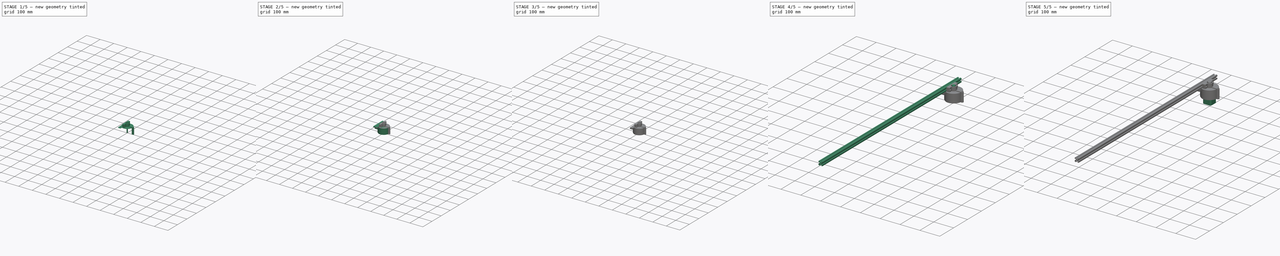
[diagram: build sequence overview — one tinted view per stage of 5, left to right]
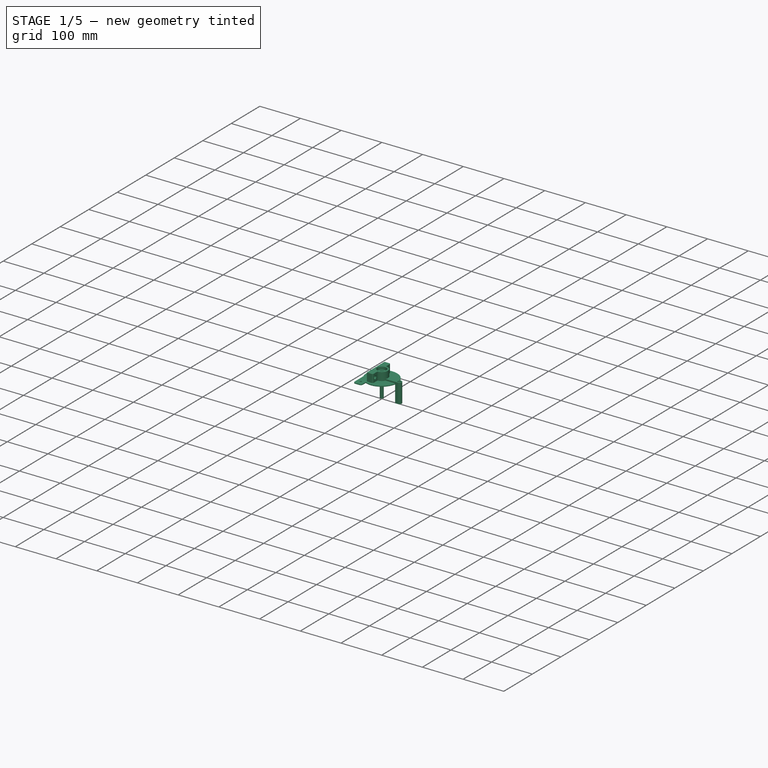
[diagram: stage 1 of 5 — iso view after this stage's code; geometry added in this stage tinted green]
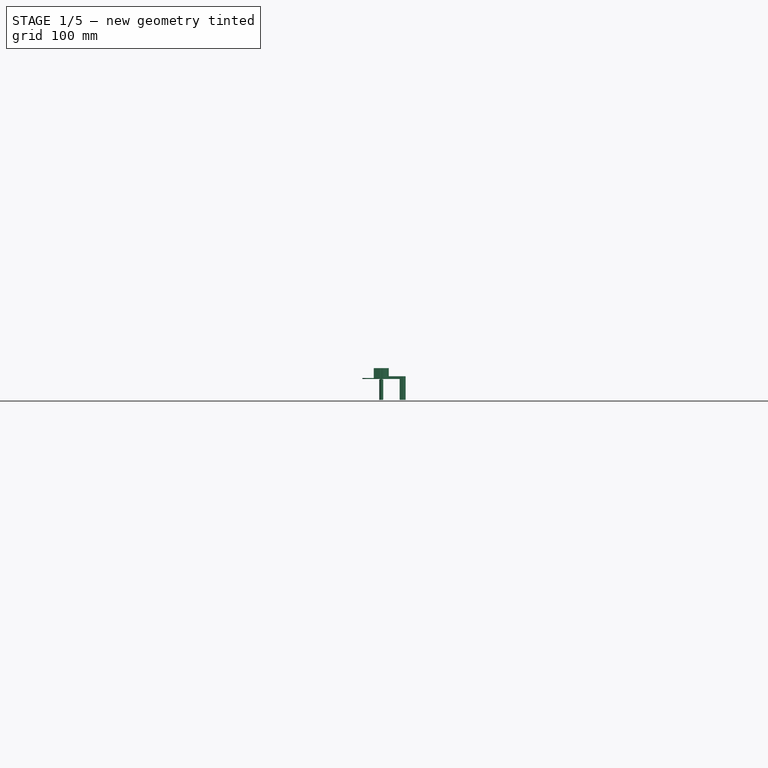
[diagram: stage 1 of 5 — front view after this stage's code; geometry added in this stage tinted green]
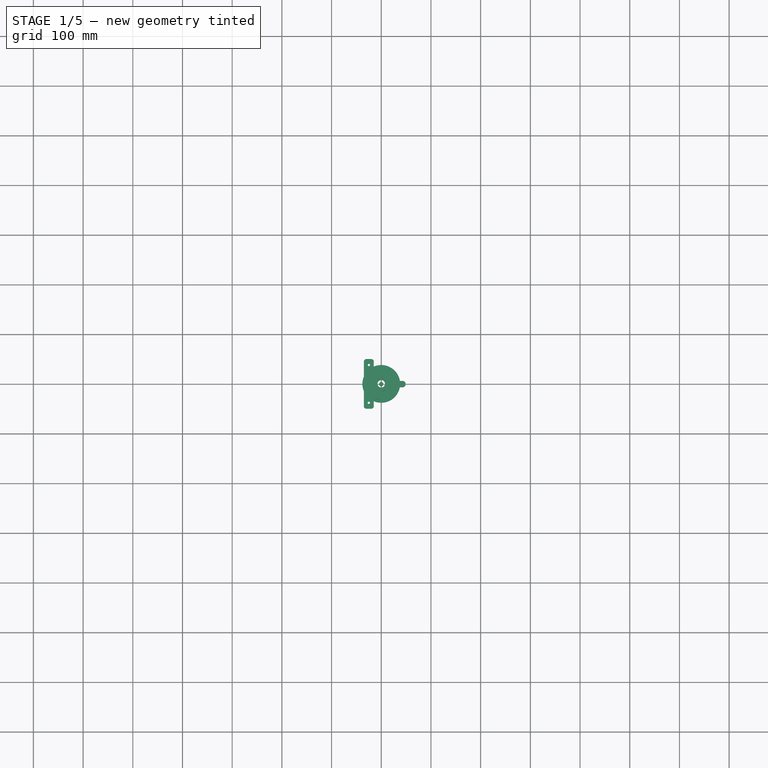
[diagram: stage 1 of 5 — top view after this stage's code; geometry added in this stage tinted green]
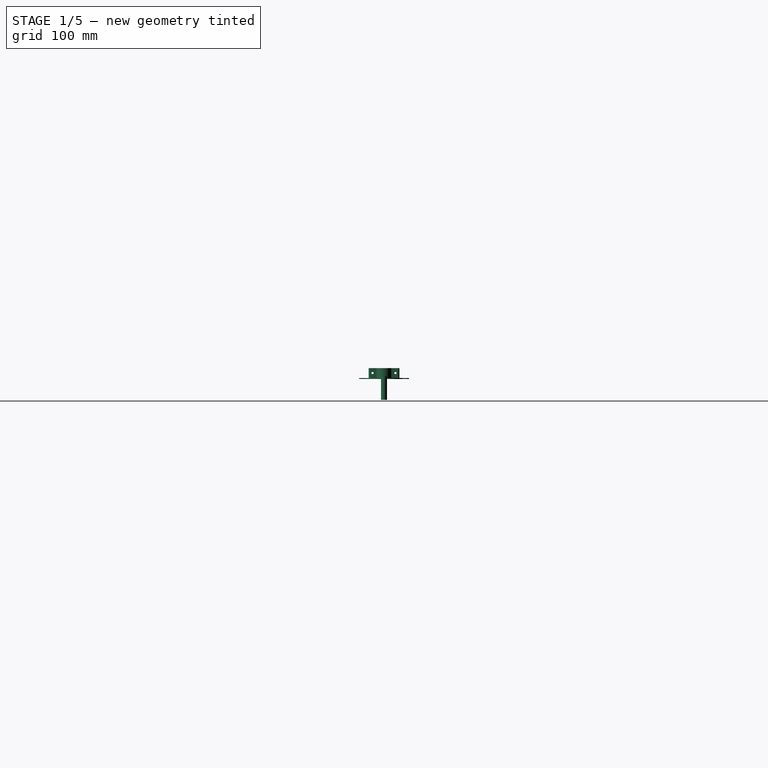
[diagram: stage 1 of 5 — right view after this stage's code; geometry added in this stage tinted green]
FCSTD DOCUMENT  (FreeCAD 1.0R1.0.0)
Label: Gear01_NEMA17
License: All rights reserved
LicenseURL: http://en.wikipedia.org/wiki/All_rights_reserved
objects: Part::Cylinder×39, Part::MultiFuse×29, Part::Cut×23, Part::Box×16, Part::FeaturePython×15, Part::Compound×8, Sketcher::SketchObject×4, Spreadsheet::Sheet×3, PartDesign::Pad×3, PartDesign::Body×3, Part::Fillet×2, Part::Feature×2, Part::Extrusion×1
note: 152 computed .brp shape members not serialized (recipe doc carries the construction recipe); baked Part::Feature solids carry a one-line shape summary decoded from their .brp

FEATURE [Spreadsheet::Sheet] Spreadsheet002  label="TypeB_20x20_4open_props"
  cells = A1='20 x 20mm Type B extrusion, open all sides; A2='Extrusion length; B2(extrusion_length)=1000
FEATURE [Part::Feature] Fillet_solid  label="Fillet (Solid)"
  Placement = pos=(0,0,0) rot=(0,0,1;1.5708rad)
  shape: bbox 20 x 62 x 30 mm, 28 faces (baked)
FEATURE [Part::Compound] Compound007
  Links = -> [Fillet_solid]
  Placement = pos=(-15,0,47) rot=(0,1,0;1.5708rad)
FEATURE [Part::FeaturePython] Tube002  # WARN: FeaturePython — macro-defined, semantics opaque (R4)
  AttacherType = Attacher::AttachEngine3D
  Height = 2
  InnerRadius = 12
  OuterRadius = 38
  Placement = pos=(0,0,35) rot=(0,0,1;0rad)
  expr: InnerRadius = 12
  expr: OuterRadius = <<GearConfiguration>>.ringgear_diameter / 2 + 5.5
FEATURE [Part::MultiFuse] Fusion012
  Shapes = -> [Compound007,Tube002]
FEATURE [Part::Cylinder] Cylinder020
  Angle = 360
  AttacherType = Attacher::AttachEngine3D
  FirstAngle = 0
  Height = 12
  Radius = 2.25
  SecondAngle = 0
FEATURE [Part::Cylinder] Cylinder021
  Angle = 360
  AttacherType = Attacher::AttachEngine3D
  FirstAngle = 0
  Height = 5
  Placement = pos=(0,0,-1) rot=(0,0,1;0rad)
  Radius = 4.5
  SecondAngle = 0
FEATURE [Part::MultiFuse] Fusion013
  Placement = pos=(-25,-38,29) rot=(0,0,1;0rad)
  Shapes = -> [Cylinder020,Cylinder021]
FEATURE [Part::Cylinder] Cylinder022
  Angle = 360
  AttacherType = Attacher::AttachEngine3D
  FirstAngle = 0
  Height = 12
  Radius = 2.25
  SecondAngle = 0
FEATURE [Part::Cylinder] Cylinder023
  Angle = 360
  AttacherType = Attacher::AttachEngine3D
  FirstAngle = 0
  Height = 5
  Placement = pos=(0,0,-1) rot=(0,0,1;0rad)
  Radius = 4.5
  SecondAngle = 0
FEATURE [Part::MultiFuse] Fusion014
  Placement = pos=(-25,38,29) rot=(0,0,1;0rad)
  Shapes = -> [Cylinder022,Cylinder023]
FEATURE [Part::Box] Box009  label="Cube009"
  AttacherType = Attacher::AttachEngine3D
  Height = 2
  Length = 20
  Placement = pos=(-35,-50,35) rot=(0,0,1;0rad)
  Width = 100
FEATURE [Part::MultiFuse] Fusion015
  Shapes = -> [Fusion012,Box009]
FEATURE [Part::MultiFuse] Fusion016
  Shapes = -> [Fusion014,Fusion013]
FEATURE [Part::Cut] Cut010
  Base = -> Fusion015
  Tool = -> Fusion016
FEATURE [Part::Fillet] Fillet001  label="Stator1"
  Base = -> Cut010
  EdgeLinks = -> Cut010 [Edge4,Edge16,Edge27,Edge53]
  Edges = 4 edges r=5: [Edge4,Edge16,Edge27,Edge53]
FEATURE [Part::Cylinder] Cylinder035
  Angle = 360
  AttacherType = Attacher::AttachEngine3D
  FirstAngle = 0
  Height = 41.2
  Placement = pos=(0,0,-7) rot=(0,0,1;0rad)
  Radius = 4
  SecondAngle = 0
  expr: .Placement.Base.z = -7 - (<<GearConfiguration>>.shell_height - 42)
  expr: Height = <<GearConfiguration>>.shell_height - 0.8
FEATURE [Part::Cylinder] Cylinder036
  Angle = 360
  AttacherType = Attacher::AttachEngine3D
  FirstAngle = 0
  Height = 51
  Placement = pos=(0,0,-7) rot=(0,0,1;0rad)
  Radius = 2.25
  SecondAngle = 0
  expr: .Placement.Base.z = -7 - (<<GearConfiguration>>.shell_height - 42)
  expr: Height = <<GearConfiguration>>.shell_height + 9
FEATURE [Part::Cylinder] Cylinder037
  Angle = 360
  AttacherType = Attacher::AttachEngine3D
  FirstAngle = 0
  Height = 42
  Placement = pos=(43,0,-7) rot=(0,0,1;0rad)
  Radius = 6
  SecondAngle = 0
  expr: .Placement.Base.x = <<GearConfiguration>>.ringgear_diameter / 2 + 6.5 + 4
  expr: .Placement.Base.z = -7 - (<<GearConfiguration>>.shell_height - 42)
  expr: Height = <<GearConfiguration>>.shell_height
FEATURE [Part::Box] Box013  label="Cube013"
  AttacherType = Attacher::AttachEngine3D
  Height = 42
  Length = 6
  Placement = pos=(37,-6,-7) rot=(0,0,1;0rad)
  Width = 12
  expr: .Placement.Base.x = <<GearConfiguration>>.ringgear_diameter / 2 + 6.5 + 4 - 6
  expr: .Placement.Base.z = -7 - (<<GearConfiguration>>.shell_height - 42)
  expr: Height = <<GearConfiguration>>.shell_height
FEATURE [Part::MultiFuse] Fusion024
  Shapes = -> [Cylinder037,Box013]
FEATURE [Part::Box] Box014  label="Cube014"
  AttacherType = Attacher::AttachEngine3D
  Height = 5.5
  Length = 30
  Placement = pos=(12,-6,-2) rot=(0,0,1;0rad)
  Width = 12
FEATURE [Part::Cylinder] Cylinder038
  Angle = 360
  AttacherType = Attacher::AttachEngine3D
  FirstAngle = 0
  Height = 5.5
  Placement = pos=(43,0,-2) rot=(0,0,1;0rad)
  Radius = 6
  SecondAngle = 0
  expr: .Placement.Base.x = <<GearConfiguration>>.ringgear_diameter / 2 + 6.5 + 4
FEATURE [Part::MultiFuse] Fusion025
  Placement = pos=(0,0,37) rot=(0,0,1;0rad)
  Shapes = -> [Cylinder038,Box014]
FEATURE [Part::Cylinder] Cylinder039
  Angle = 360
  AttacherType = Attacher::AttachEngine3D
  FirstAngle = 0
  Height = 46.7
  Placement = pos=(43,0,-2) rot=(0,0,1;0rad)
  Radius = 2.25
  SecondAngle = 0
  expr: .Placement.Base.x = <<GearConfiguration>>.ringgear_diameter / 2 + 6.5 + 4
FEATURE [Sketcher::SketchObject] Sketch003
  ArcFitTolerance = 0
  FullyConstrained = true
  MakeInternals = false
  sketch-geometry (7):
    g0: LineSegment StartX=-4.33 StartY=0 StartZ=0 EndX=-2.165 EndY=-3.74989 EndZ=0
    g1: LineSegment StartX=-2.165 StartY=-3.74989 StartZ=0 EndX=2.165 EndY=-3.74989 EndZ=0
    g2: LineSegment StartX=2.165 StartY=-3.74989 StartZ=0 EndX=4.33 EndY=-4e-16 EndZ=0
    g3: LineSegment StartX=4.33 StartY=-3e-16 StartZ=0 EndX=2.165 EndY=3.74989 EndZ=0
    g4: LineSegment StartX=2.165 StartY=3.74989 StartZ=0 EndX=-2.165 EndY=3.74989 EndZ=0
    g5: LineSegment StartX=-2.165 StartY=3.74989 StartZ=0 EndX=-4.33 EndY=0 EndZ=0
    g6: Circle [constr] CenterX=0 CenterY=0 CenterZ=0 NormalX=0 NormalY=0 NormalZ=1 AngleXU=0 Radius=4.33
  constraints (16):
    c: Coincident(g0,g1)
    c: Coincident(g1,g2)
    c: Coincident(g2,g3)
    c: Coincident(g3,g4)
    c: Coincident(g4,g5)
    c: Coincident(g5,g0)
    c: Equal(g0, g1-g5) x5
    c: PointOnObject(g0,g6)
    c: PointOnObject(g1,g6)
    c: PointOnObject(g2,g6)
    c: PointOnObject(g3,g6)
    c: PointOnObject(g4,g6)
    c: PointOnObject(g5,g6)
    c: Coincident(g6,g-1)
    c: PointOnObject(g5,g-1)
    c: DistanceX(g0,g2) = 8.66
FEATURE [Part::Extrusion] Extrude  label="DIN934_M4"
  Base = -> Sketch003
  Dir = (0,0,1)
  DirMode = 2
  FaceMakerClass = Part::FaceMakerBullseye
  FaceMakerMode = 3
  LengthFwd = 2.4
  LengthRev = 0
  Placement = pos=(43,0,38.1) rot=(0,0,1;0rad)
  Solid = true
  Symmetric = false
FEATURE [Part::MultiFuse] Fusion026
  Shapes = -> [Cylinder039,Extrude]
FEATURE [Part::Cut] Cut021
  Base = -> Fusion025
  Tool = -> Fusion026
FEATURE [Part::MultiFuse] Fusion028  label="Stator001_WithScrew"
  Shapes = -> [Cut021,Fillet001]
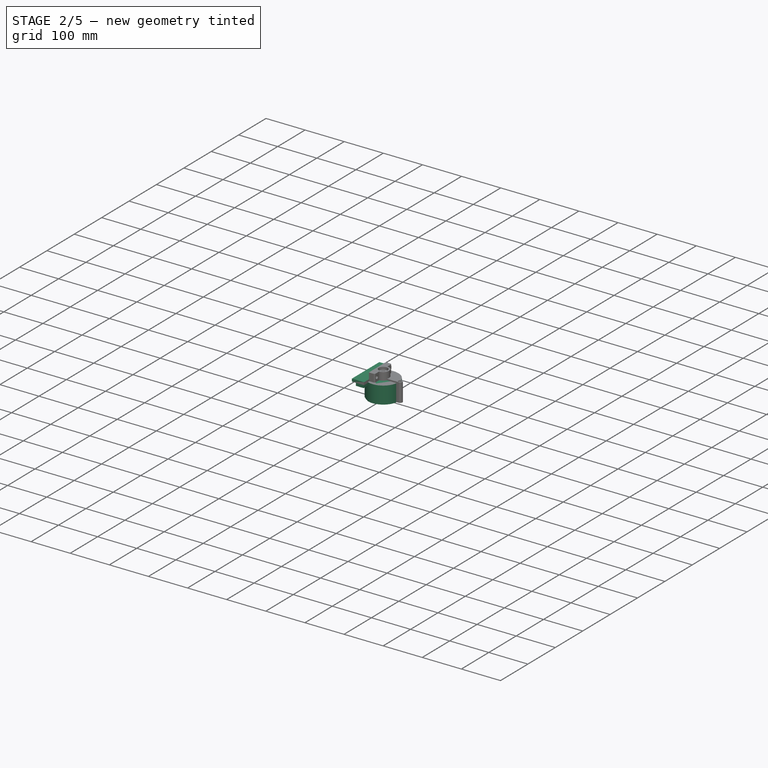
[diagram: stage 2 of 5 — iso view after this stage's code; geometry added in this stage tinted green]
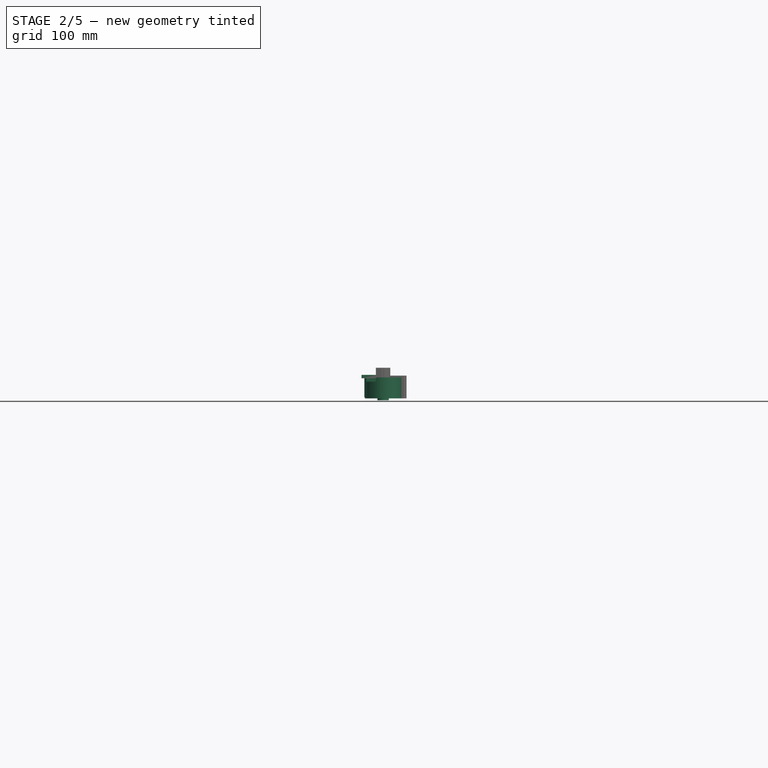
[diagram: stage 2 of 5 — front view after this stage's code; geometry added in this stage tinted green]
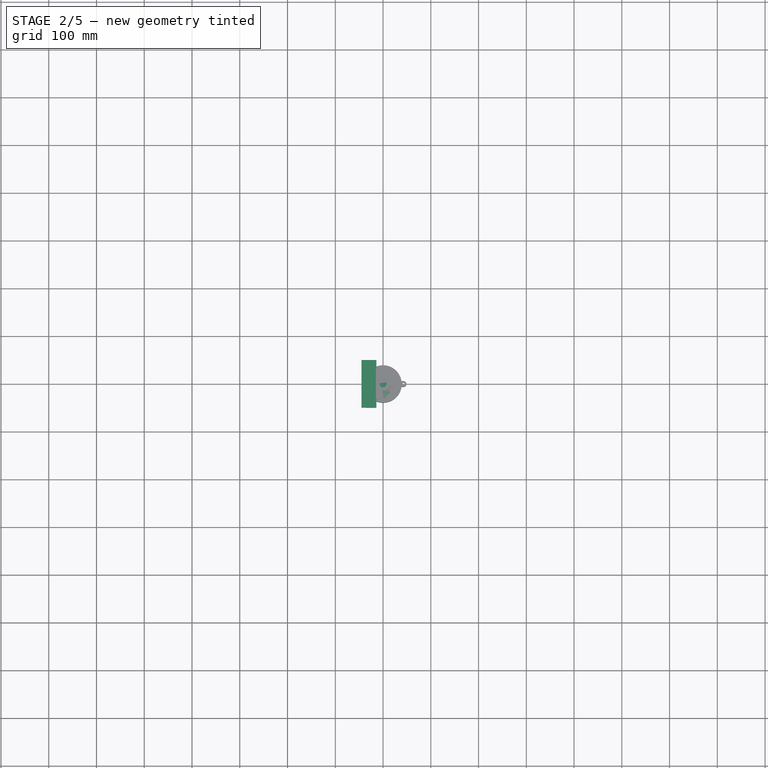
[diagram: stage 2 of 5 — top view after this stage's code; geometry added in this stage tinted green]
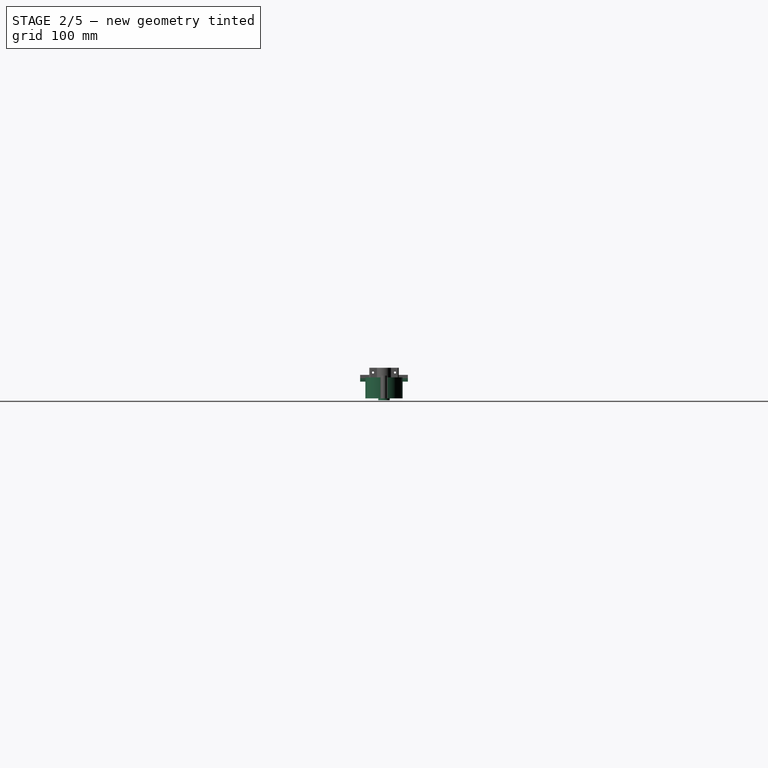
[diagram: stage 2 of 5 — right view after this stage's code; geometry added in this stage tinted green]
FEATURE [Part::Cylinder] Cylinder019
  Angle = 360
  AttacherType = Attacher::AttachEngine3D
  FirstAngle = 0
  Height = 5
  Placement = pos=(0,0,-7) rot=(0,0,1;0rad)
  Radius = 37.5
  SecondAngle = 0
  expr: .Placement.Base.z = -7 - (<<GearConfiguration>>.shell_height - 42)
  expr: Radius = <<GearConfiguration>>.ringgear_diameter / 2 + 5
FEATURE [Part::Cylinder] Cylinder024
  Angle = 360
  AttacherType = Attacher::AttachEngine3D
  FirstAngle = 0
  Height = 12
  Radius = 2.25
  SecondAngle = 0
FEATURE [Part::Cylinder] Cylinder025
  Angle = 360
  AttacherType = Attacher::AttachEngine3D
  FirstAngle = 0
  Height = 5
  Placement = pos=(0,0,-1) rot=(0,0,1;0rad)
  Radius = 4.5
  SecondAngle = 0
FEATURE [Part::Cylinder] Cylinder026
  Angle = 360
  AttacherType = Attacher::AttachEngine3D
  FirstAngle = 0
  Height = 12
  Radius = 2.25
  SecondAngle = 0
FEATURE [Part::Cylinder] Cylinder027
  Angle = 360
  AttacherType = Attacher::AttachEngine3D
  FirstAngle = 0
  Height = 5
  Placement = pos=(0,0,-1) rot=(0,0,1;0rad)
  Radius = 4.5
  SecondAngle = 0
FEATURE [Part::MultiFuse] Fusion017
  Placement = pos=(-25,-38,29) rot=(0,0,1;0rad)
  Shapes = -> [Cylinder024,Cylinder025]
FEATURE [Part::MultiFuse] Fusion018
  Placement = pos=(-25,38,29) rot=(0,0,1;0rad)
  Shapes = -> [Cylinder026,Cylinder027]
FEATURE [Part::MultiFuse] Fusion019
  Shapes = -> [Fusion018,Fusion017]
FEATURE [Part::Box] Box010  label="Cube010"
  AttacherType = Attacher::AttachEngine3D
  Height = 7
  Length = 20
  Placement = pos=(-35,-50,28) rot=(0,0,1;0rad)
  Width = 100
FEATURE [Part::Cut] Cut011
  Base = -> Box010
  Tool = -> Fusion019
FEATURE [Part::Cylinder] Cylinder028
  Angle = 360
  AttacherType = Attacher::AttachEngine3D
  FirstAngle = 0
  Height = 10
  Placement = pos=(0,0,28) rot=(0,0,1;0rad)
  Radius = 36.5
  SecondAngle = 0
  expr: Radius = <<GearConfiguration>>.ringgear_diameter / 2 + 4
FEATURE [Part::Cut] Cut012
  Base = -> Cut011
  Tool = -> Cylinder028
FEATURE [Part::FeaturePython] InvoluteGear002  # WARN: FeaturePython — macro-defined, semantics opaque (R4)
  AttacherType = Attacher::AttachEngine3D
  Placement = pos=(0,0,-5) rot=(0,0,1;0rad)
  angular_backlash = -0.528884
  backlash = -0.3
  beta = 30
  clearance = -0.7
  da = 69
  df = 64.4
  double_helix = false
  dw = 65
  head = 1
  head_fillet = 0
  height = 42
  module = 1
  numpoints = 20
  pressure_angle = 20
  properties_from_tool = false
  reversed_backlash = false
  root_fillet = 0
  shift = 0
  simple = false
  teeth = 65
  transverse_pitch = 3.14159
  traverse_module = 1
  undercut = false
  version = 1.2.0
  expr: .Placement.Base.z = -5 - (<<GearConfiguration>>.shell_height - 42)
  expr: angular_backlash = backlash / dw * 360 ° / pi
  expr: backlash = -<<GearConfiguration>>.backlash
  expr: clearance = -1 * <<GearConfiguration>>.gear_clearance
  expr: height = <<GearConfiguration>>.shell_height
  expr: module = <<GearConfiguration>>.gear_module
  expr: teeth = <<GearConfiguration>>.zr
FEATURE [Part::FeaturePython] Tube003  # WARN: FeaturePython — macro-defined, semantics opaque (R4)
  AttacherType = Attacher::AttachEngine3D
  Height = 44
  InnerRadius = 38
  OuterRadius = 39
  Placement = pos=(0,0,-7) rot=(0,0,1;0rad)
  expr: .Placement.Base.z = -7 - (<<GearConfiguration>>.shell_height - 42)
  expr: Height = <<GearConfiguration>>.shell_height + 2
  expr: InnerRadius = <<GearConfiguration>>.ringgear_diameter / 2 + 5.5
  expr: OuterRadius = <<GearConfiguration>>.ringgear_diameter / 2 + 6.5
FEATURE [Part::Box] Box011  label="Cube011"
  AttacherType = Attacher::AttachEngine3D
  Height = 44
  Length = 40
  Placement = pos=(-55,-50,-7) rot=(0,0,1;0rad)
  Width = 100
  expr: .Placement.Base.z = -7 - (<<GearConfiguration>>.shell_height - 42)
  expr: Height = <<GearConfiguration>>.shell_height + 2
FEATURE [Part::Cut] Cut014
  Base = -> Tube003
  Tool = -> Box011
FEATURE [Part::Cylinder] Cylinder029
  Angle = 360
  AttacherType = Attacher::AttachEngine3D
  FirstAngle = 0
  Height = 42
  Placement = pos=(0,0,-7) rot=(0,0,1;0rad)
  Radius = 29.5
  SecondAngle = 0
  expr: .Placement.Base.z = -7 - (<<GearConfiguration>>.shell_height - 42)
  expr: Height = <<GearConfiguration>>.shell_height
  expr: Radius = <<GearConfiguration>>.ringgear_diameter / 2 - 3
FEATURE [Part::Cylinder] Cylinder030
  Angle = 360
  AttacherType = Attacher::AttachEngine3D
  FirstAngle = 0
  Height = 42
  Placement = pos=(0,0,-7) rot=(0,0,1;0rad)
  Radius = 38
  SecondAngle = 0
  expr: .Placement.Base.z = -7 - (<<GearConfiguration>>.shell_height - 42)
  expr: Height = <<GearConfiguration>>.shell_height
  expr: Radius = <<GearConfiguration>>.ringgear_diameter / 2 + 5.5
FEATURE [Part::Cut] Cut015
  Base = -> Cylinder030
  Tool = -> Cylinder029
FEATURE [Part::Cylinder] Cylinder031
  Angle = 360
  AttacherType = Attacher::AttachEngine3D
  FirstAngle = 0
  Height = 42
  Placement = pos=(0,0,-5) rot=(0,0,1;0rad)
  Radius = 38
  SecondAngle = 0
  expr: .Placement.Base.z = -5 - (<<GearConfiguration>>.shell_height - 42)
  expr: Height = <<GearConfiguration>>.shell_height
  expr: Radius = <<GearConfiguration>>.ringgear_diameter / 2 + 5.5
FEATURE [Part::Cylinder] Cylinder032
  Angle = 360
  AttacherType = Attacher::AttachEngine3D
  FirstAngle = 0
  Height = 42
  Placement = pos=(0,0,-5) rot=(0,0,1;0rad)
  Radius = 39
  SecondAngle = 0
  expr: .Placement.Base.z = -5 - (<<GearConfiguration>>.shell_height - 42)
  expr: Height = <<GearConfiguration>>.shell_height
  expr: Radius = <<GearConfiguration>>.ringgear_diameter / 2 + 6.5
FEATURE [Part::Cut] Cut016
  Base = -> Cylinder032
  Tool = -> Cylinder031
FEATURE [Part::MultiFuse] Fusion021
  Shapes = -> [Cut014,Cut016]
FEATURE [Part::Box] Box012  label="Cube012"
  AttacherType = Attacher::AttachEngine3D
  Height = 7
  Length = 31
  Placement = pos=(-45,-50,35) rot=(0,0,1;0rad)
  Width = 100
FEATURE [Part::Cylinder] Cylinder034
  Angle = 360
  AttacherType = Attacher::AttachEngine3D
  FirstAngle = 0
  Height = 10
  Placement = pos=(0,0,-11) rot=(0,0,1;0rad)
  Radius = 12
  SecondAngle = 0
  expr: .Placement.Base.z = -11 - (<<GearConfiguration>>.shell_height - 42)
FEATURE [Part::MultiFuse] Fusion023
  Placement = pos=(43,0,0) rot=(0,0,1;0rad)
  Shapes = -> [Cylinder036,Cylinder035]
  expr: .Placement.Base.x = <<GearConfiguration>>.ringgear_diameter / 2 + 6.5 + 4
FEATURE [Part::Cut] Cut020
  Base = -> Fusion024
  Tool = -> Fusion023
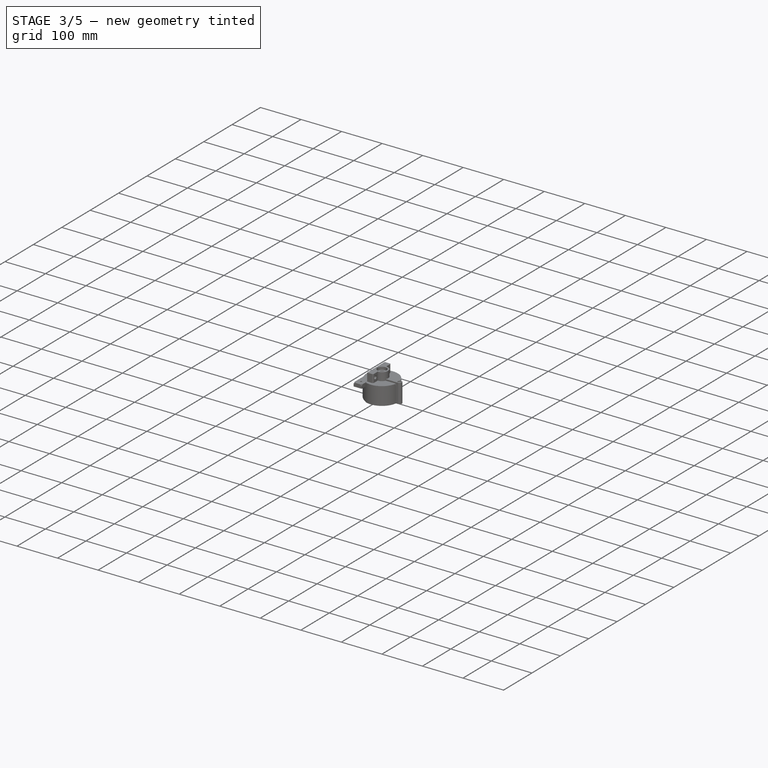
[diagram: stage 3 of 5 — iso view after this stage's code; geometry added in this stage tinted green]
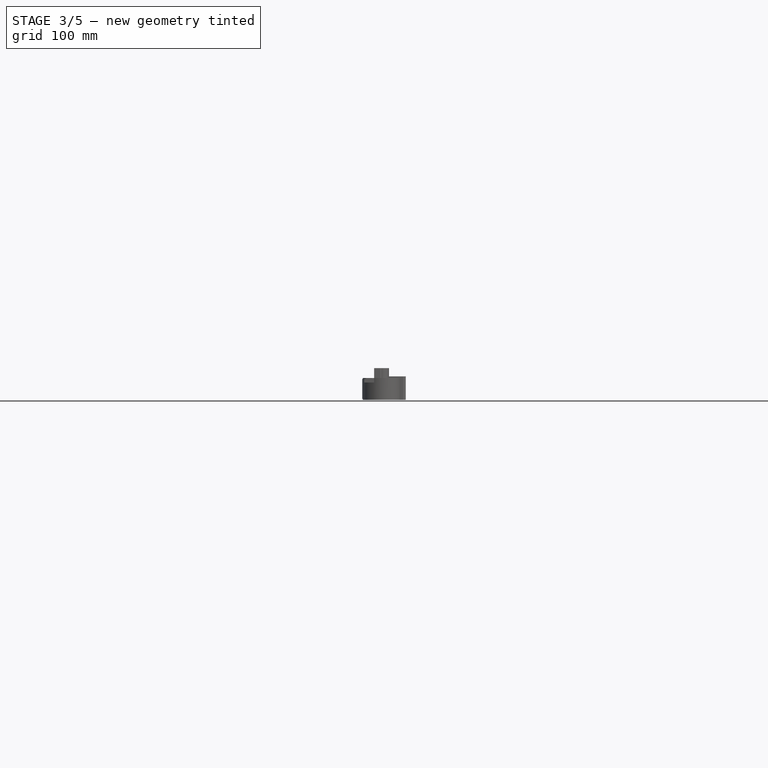
[diagram: stage 3 of 5 — front view after this stage's code; geometry added in this stage tinted green]
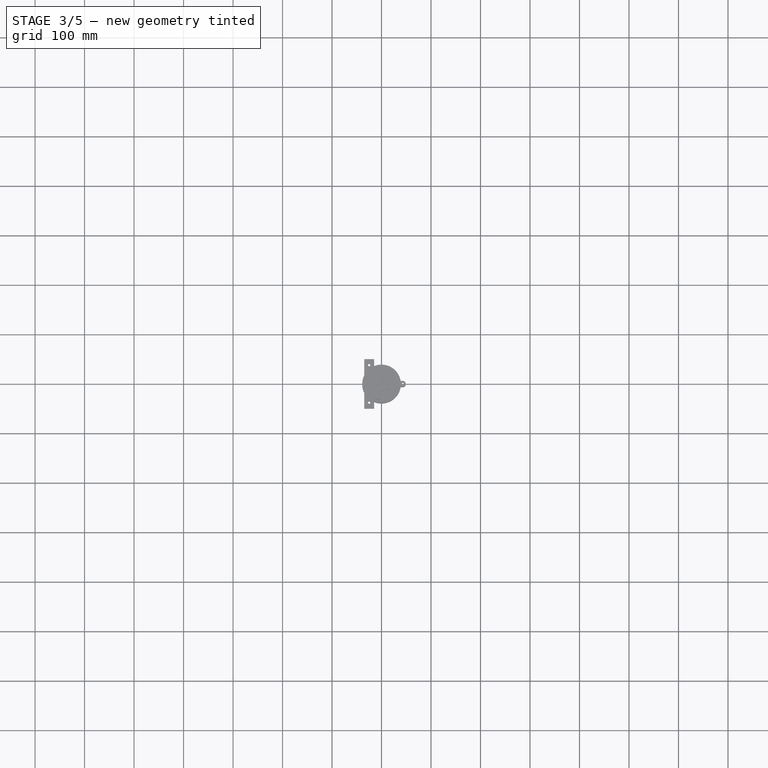
[diagram: stage 3 of 5 — top view after this stage's code; geometry added in this stage tinted green]
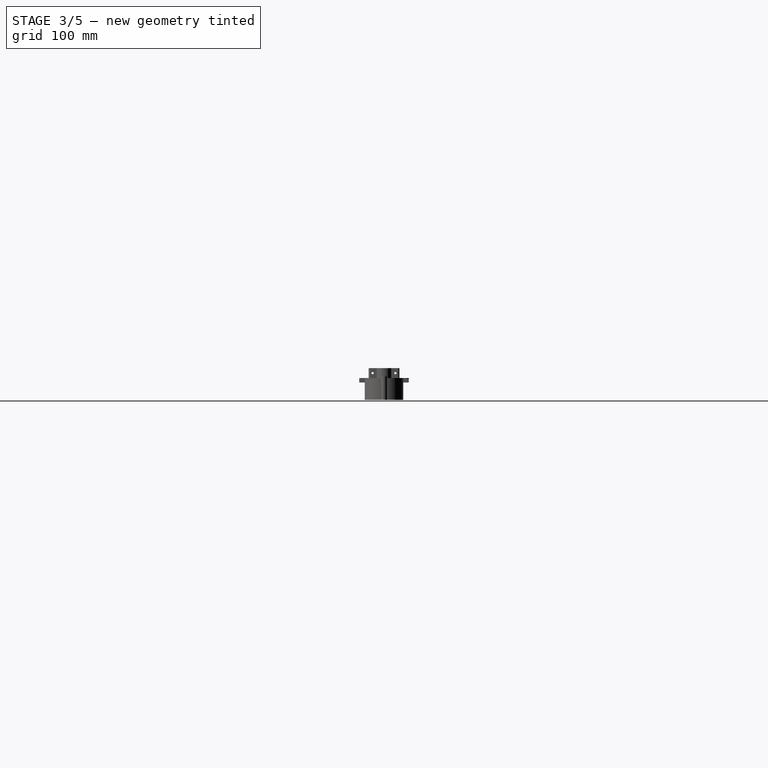
[diagram: stage 3 of 5 — right view after this stage's code; geometry added in this stage tinted green]
FEATURE [Spreadsheet::Sheet] Spreadsheet  label="NEMA17Parameters"
  cells = A1='Motor length; B1(motorlength)=37.5; A2='Mountplate thickness; B2(mountplatet)=5; A3='Mountplate below screw; B3(nema17mountplatebelowscrew)=1
FEATURE [Spreadsheet::Sheet] Spreadsheet001  label="GearConfiguration"
  cells = A1='Configuration properties; D1='Calculated properties; A2='Sun gear teeth; B2(zs)=13; D2='Planet gear teeth; E2(zp)==(zr - zs) / 2; A3='Ring gear teeth; B3(zr)=65; D3='Planetary gear offset; E3(planet_offset)==gear_module * (zp + zs) / 2; A4='Module; B4(gear_module)=1; D4='Ring Gear Diameter; E4(ringgear_diameter)==gear_module * zr; A5='Ring Gear thickness; B5(ringgear_thick)=5; D5='Transmission ratio; E5==1 + zr / zs; A6='Clearance; B6(gear_clearance)=0.7; C6='Default 0.25; D6='Sun gear diameter; E6(sun_gear_diameter)==gear_module * zs; A7='Number of planets; B7(num_planets)=3; A8='Planet 'Carrier Thickness; B8(planet_carrier_thickness)=2; A9='Backlash; B9(backlash)=0.3; A10='Shell height; B10(shell_height)=42
FEATURE [Part::Box] Box005  label="Cube005"
  AttacherType = Attacher::AttachEngine3D
  Height = 20
  Length = 10
  Placement = pos=(-5,2.1,1.8) rot=(0,0,1;0rad)
  Width = 10
FEATURE [Part::Cylinder] Cylinder006
  Angle = 360
  AttacherType = Attacher::AttachEngine3D
  FirstAngle = 0
  Height = 20
  Radius = 2.7
  SecondAngle = 0
FEATURE [Part::Cut] Cut002
  Base = -> Cylinder006
  Tool = -> Box005
FEATURE [Part::FeaturePython] InvoluteGear  # WARN: FeaturePython — macro-defined, semantics opaque (R4)
  AttacherType = Attacher::AttachEngine3D
  angular_backlash = 2.64442
  backlash = 0.3
  beta = -30
  clearance = 0.7
  da = 15
  df = 9.6
  double_helix = false
  dw = 13
  head = 0
  head_fillet = 0
  height = 15
  module = 1
  numpoints = 20
  pressure_angle = 20
  properties_from_tool = false
  reversed_backlash = false
  root_fillet = 0
  shift = 0
  simple = false
  teeth = 13
  transverse_pitch = 3.14159
  traverse_module = 1
  undercut = false
  version = 1.2.0
  expr: angular_backlash = backlash / dw * 360 ° / pi
  expr: backlash = <<GearConfiguration>>.backlash
  expr: clearance = <<GearConfiguration>>.gear_clearance
  expr: module = <<GearConfiguration>>.gear_module
  expr: teeth = <<GearConfiguration>>.zs
FEATURE [Part::Cut] Cut003  label="SunGear1"
  Base = -> InvoluteGear
  Placement = pos=(0,0,2) rot=(0,0,1;0.174533rad)
  Tool = -> Cut002
FEATURE [Part::Cylinder] Cylinder010
  Angle = 360
  AttacherType = Attacher::AttachEngine3D
  FirstAngle = 0
  Height = 5.5
  Placement = pos=(0,0,20) rot=(0,0,1;0rad)
  Radius = 24.5
  SecondAngle = 0
  expr: Height = <<GearConfiguration>>.planet_carrier_thickness + 3.5
  expr: Radius = <<GearConfiguration>>.planet_offset + 5
FEATURE [Sketcher::SketchObject] Sketch
  ArcFitTolerance = 1e-06
  AttachmentSupport = -> [XY_Plane]
  FullyConstrained = true
  MakeInternals = false
  MapMode = 5
  sketch-geometry (7):
    g0: LineSegment StartX=4 StartY=0 StartZ=0 EndX=2 EndY=3.4641 EndZ=0
    g1: LineSegment StartX=2 StartY=3.4641 StartZ=0 EndX=-2 EndY=3.4641 EndZ=0
    g2: LineSegment StartX=-2 StartY=3.4641 StartZ=0 EndX=-4 EndY=-6.867e-12 EndZ=0
    g3: LineSegment StartX=-4 StartY=-6.867e-12 StartZ=0 EndX=-2 EndY=-3.4641 EndZ=0
    g4: LineSegment StartX=-2 StartY=-3.4641 StartZ=0 EndX=2 EndY=-3.4641 EndZ=0
    g5: LineSegment StartX=2 StartY=-3.4641 StartZ=0 EndX=4 EndY=0 EndZ=0
    g6: Circle [constr] CenterX=0 CenterY=0 CenterZ=0 NormalX=0 NormalY=0 NormalZ=1 AngleXU=0 Radius=4
  constraints (16):
    c: Coincident(g0,g1)
    c: Coincident(g1,g2)
    c: Coincident(g2,g3)
    c: Coincident(g3,g4)
    c: Coincident(g4,g5)
    c: Coincident(g5,g0)
    c: Equal(g0, g1-g5) x5
    c: PointOnObject(g0,g6)
    c: PointOnObject(g1,g6)
    c: PointOnObject(g2,g6)
    c: PointOnObject(g3,g6)
    c: PointOnObject(g4,g6)
    c: PointOnObject(g5,g6)
    c: Radius(g6) = 4
    c: Coincident(g6,g-1)
    c: PointOnObject(g5,g-1)
FEATURE [PartDesign::Pad] Pad
  Direction = (0,0,1)
  Length = 3.5
  Length2 = 10
  Profile = -> Sketch
  ReferenceAxis = -> Sketch [N_Axis]
  Suppressed = false
  Type = 0
FEATURE [PartDesign::Body] Body  label="PressfitM4"
  AllowCompound = false
  Group = -> [Sketch,Pad]
  Origin = -> Origin
  Placement = pos=(19.5,0,22) rot=(0,0,1;0rad)
  Tip = -> Pad
  expr: .Placement.Base.x = <<GearConfiguration>>.planet_offset
  expr: .Placement.Base.z = 20 + <<GearConfiguration>>.planet_carrier_thickness
FEATURE [Part::Cylinder] Cylinder011
  Angle = 360
  AttacherType = Attacher::AttachEngine3D
  FirstAngle = 0
  Height = 10
  Placement = pos=(19.5,0,20) rot=(0,0,1;0rad)
  Radius = 2.25
  SecondAngle = 0
  expr: .Placement.Base.x = <<GearConfiguration>>.planet_offset
FEATURE [Part::MultiFuse] Fusion003
  Shapes = -> [Cylinder011,Body]
FEATURE [Part::FeaturePython] Array002  # Draft array (typed FeaturePython)
  AlwaysSyncPlacement = false
  Angle = 360
  ArrayType = 1
  Axis = (0,0,1)
  Base = -> Fusion003
  Center = (0,0,0)
  Count = 3
  ExpandArray = false
  Fuse = false
  IntervalAxis = (0,0,0)
  IntervalX = (50,0,0)
  IntervalY = (0,50,0)
  IntervalZ = (0,0,50)
  NumberCircles = 3
  NumberPolar = 3
  NumberX = 2
  NumberY = 2
  NumberZ = 1
  PlacementList = 3 placements: [(0,0,0),(0,0,0),(0,0,0)]
  RadialDistance = 50
  ScaleList = (3) [(1,1,1),(1,1,1),(1,1,1)]
  Symmetry = 1
  TangentialDistance = 25
  expr: NumberPolar = <<GearConfiguration>>.num_planets
FEATURE [Part::Cut] Cut005
  Base = -> Cylinder010
  Tool = -> Array002
FEATURE [Part::Cylinder] Cylinder012
  Angle = 360
  AttacherType = Attacher::AttachEngine3D
  FirstAngle = 0
  Height = 1
  Placement = pos=(0,0,20) rot=(0,0,1;0rad)
  Radius = 11.5
  SecondAngle = 0
  expr: Height = <<GearConfiguration>>.planet_carrier_thickness / 2
  expr: Radius = <<GearConfiguration>>.gear_module * <<GearConfiguration>>.zs / 2 + 5
FEATURE [Part::Cylinder] Cylinder013
  Angle = 360
  AttacherType = Attacher::AttachEngine3D
  FirstAngle = 0
  Height = 10
  Placement = pos=(0,0,25.5) rot=(0,0,1;0rad)
  Radius = 11.5
  SecondAngle = 0
  expr: .Placement.Base.z = 20 + <<GearConfiguration>>.planet_carrier_thickness + 3.5
  expr: Radius = <<GearConfiguration>>.gear_module * <<GearConfiguration>>.zs / 2 + 5
FEATURE [Part::FeaturePython] Tube  # WARN: FeaturePython — macro-defined, semantics opaque (R4)
  AttacherType = Attacher::AttachEngine3D
  Height = 1
  InnerRadius = 4.5
  OuterRadius = 6.5
  Placement = pos=(0,0,35.5) rot=(0,0,1;0rad)
  expr: .Placement.Base.z = 20 + <<GearConfiguration>>.planet_carrier_thickness + 3.5 + 10
FEATURE [Part::Feature] Cut003_solid  label="MountplateTemplate"
  Placement = pos=(0,0,-7) rot=(1,0,0;3.14159rad)
  shape: bbox 42.3 x 42.3 x 5 mm, 19 faces (baked)
  expr: .Placement.Base.z = -7 - (<<GearConfiguration>>.shell_height - 42)
FEATURE [Part::Box] Box008  label="Cube008"
  AttacherType = Attacher::AttachEngine3D
  Height = 50
  Length = 42
  Placement = pos=(-21,-21,-25) rot=(0,0,1;0rad)
  Width = 42
FEATURE [Part::MultiFuse] Fusion010
  Shapes = -> [Cylinder019,Cut015]
FEATURE [Part::Cut] Cut009
  Base = -> Fusion010
  Tool = -> Box008
FEATURE [Part::MultiFuse] Fusion011
  Shapes = -> [Cut009,Cut003_solid]
FEATURE [Part::MultiFuse] Fusion020
  Shapes = -> [Fusion011,Cut012]
FEATURE [Part::Cut] Cut013  label="Stator02"
  Base = -> Fusion020
  Tool = -> InvoluteGear002
FEATURE [Part::MultiFuse] Fusion022  label="Stator2"
  Shapes = -> [Cut013,Fusion021]
FEATURE [Part::Cylinder] Cylinder033
  Angle = 360
  AttacherType = Attacher::AttachEngine3D
  FirstAngle = 0
  Height = 10
  Placement = pos=(0,0,15) rot=(1,0,0;1.5708rad)
  Radius = 0.9
  SecondAngle = 0
  expr: Radius = 1.8 / 2
FEATURE [Part::Cut] Cut017  label="SunGearLockable"
  Base = -> Cut003
  Tool = -> Cylinder033
FEATURE [Part::Cut] Cut018  label="Stator2_Cut01"
  Base = -> Fusion022
  Tool = -> Box012
FEATURE [Part::Cut] Cut019
  Base = -> Cut018
  Tool = -> Cylinder034
FEATURE [Part::Box] Box015  label="Cube015"
  AttacherType = Attacher::AttachEngine3D
  Height = 5.5
  Length = 6
  Placement = pos=(37,-7,35) rot=(0,0,1;0rad)
  Width = 14
  expr: .Placement.Base.x = <<GearConfiguration>>.ringgear_diameter / 2 + 6.5 + 4 - 6
FEATURE [Part::MultiFuse] Fusion027
  Shapes = -> [Cut019,Cut020]
FEATURE [Part::Cut] Cut022  label="Stator002_WithScrew"
  Base = -> Fusion027
  Tool = -> Box015
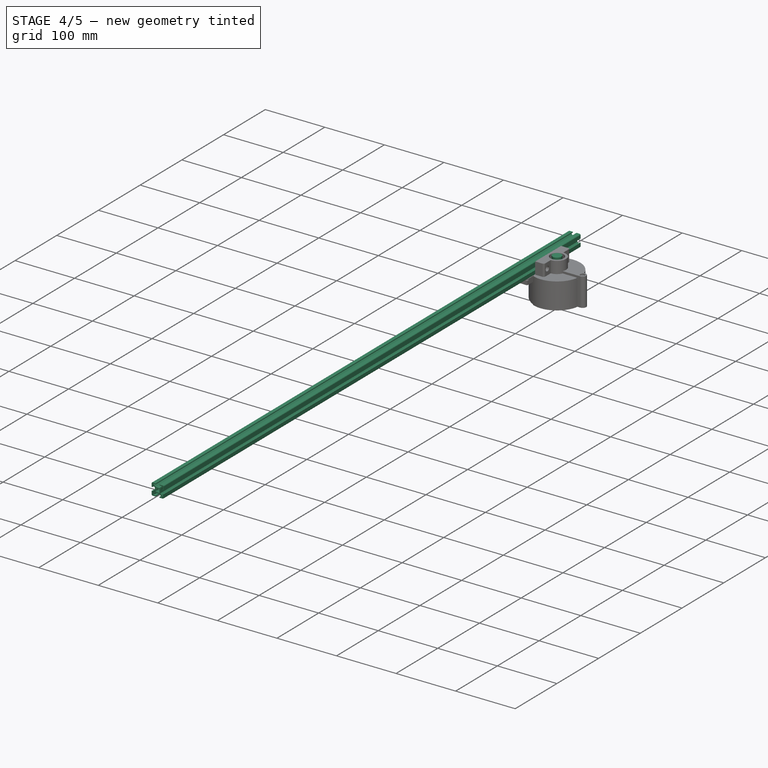
[diagram: stage 4 of 5 — iso view after this stage's code; geometry added in this stage tinted green]
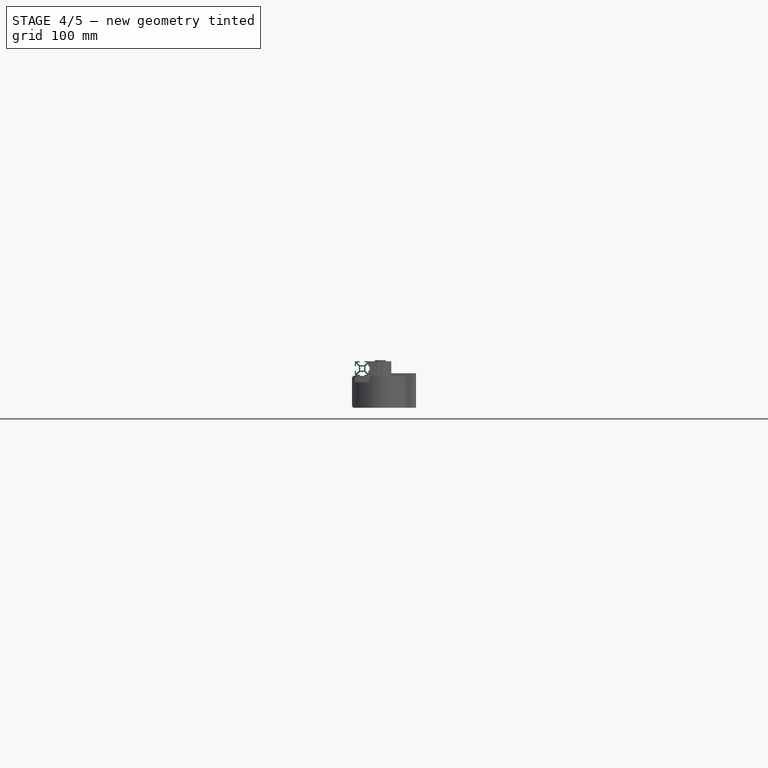
[diagram: stage 4 of 5 — front view after this stage's code; geometry added in this stage tinted green]
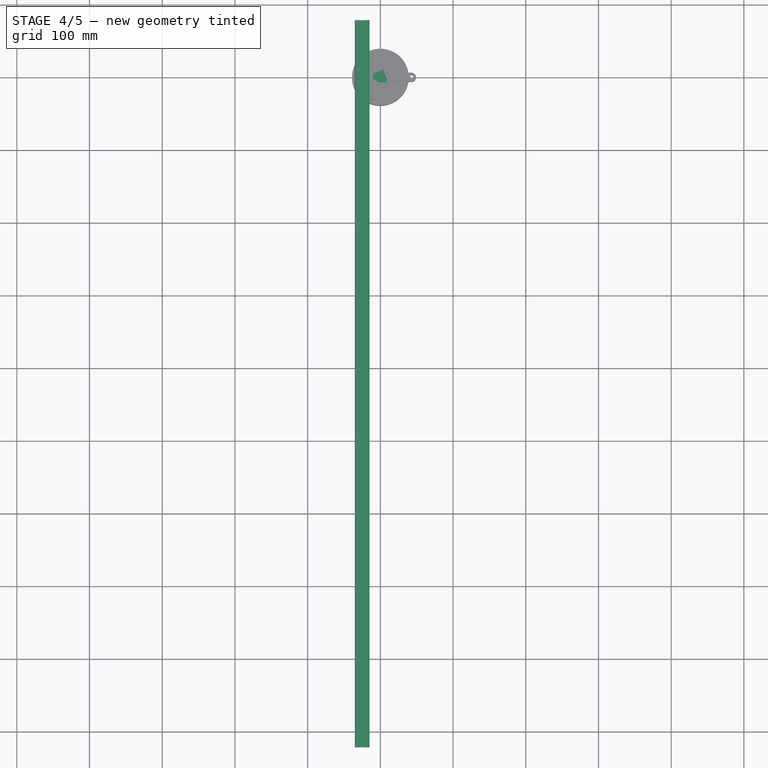
[diagram: stage 4 of 5 — top view after this stage's code; geometry added in this stage tinted green]
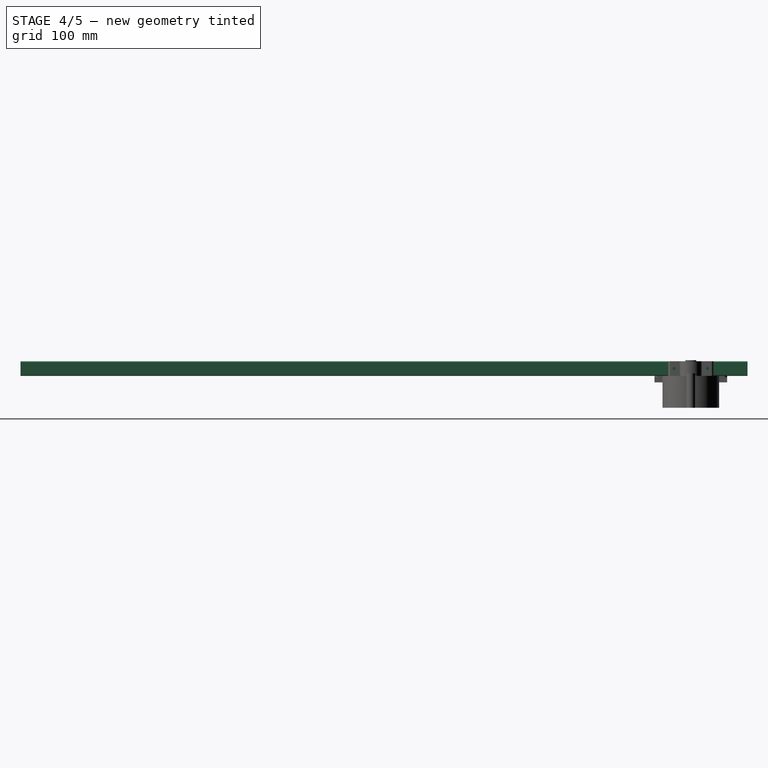
[diagram: stage 4 of 5 — right view after this stage's code; geometry added in this stage tinted green]
FEATURE [Part::FeaturePython] Screw  label="M4x20-Screw"  # WARN: FeaturePython — macro-defined, semantics opaque (R4)
  Diameter = 5
  Invert = false
  LeftHanded = false
  Length = 6
  LengthCustom = 20
  MatchOuter = false
  Placement = pos=(19.5,0,9) rot=(1,0,0;3.14159rad)
  Thread = false
  Type = 74
  expr: .Placement.Base.x = <<GearConfiguration>>.planet_offset
FEATURE [Part::FeaturePython] Nut  label="M4-Nut001"  # WARN: FeaturePython — macro-defined, semantics opaque (R4)
  Diameter = 9
  Invert = false
  LeftHanded = false
  MatchOuter = false
  Placement = pos=(19.5,0,22) rot=(0,0,1;0rad)
  Thread = false
  Type = 19
  expr: .Placement.Base.x = <<GearConfiguration>>.planet_offset
  expr: .Placement.Base.z = 20 + <<GearConfiguration>>.planet_carrier_thickness
FEATURE [Part::FeaturePython] Nut001  label="M4-Nut"  # WARN: FeaturePython — macro-defined, semantics opaque (R4)
  Diameter = 9
  Invert = false
  LeftHanded = false
  MatchOuter = false
  Placement = pos=(19.5,0,25.2) rot=(0,0,1;0rad)
  Thread = false
  Type = 19
  expr: .Placement.Base.x = <<GearConfiguration>>.planet_offset
  expr: .Placement.Base.z = 20 + <<GearConfiguration>>.planet_carrier_thickness + 3.2
FEATURE [Part::Compound] Compound006
  Links = -> [Nut001,Screw,Nut]
FEATURE [Part::FeaturePython] Array001  label="MODELPlanetGearScrews"  # Draft array (typed FeaturePython)
  AlwaysSyncPlacement = false
  Angle = 360
  ArrayType = 1
  Axis = (0,0,1)
  Base = -> Compound006
  Center = (0,0,0)
  Count = 3
  ExpandArray = false
  Fuse = false
  IntervalAxis = (0,0,0)
  IntervalX = (50,0,0)
  IntervalY = (0,50,0)
  IntervalZ = (0,0,50)
  NumberCircles = 3
  NumberPolar = 3
  NumberX = 2
  NumberY = 2
  NumberZ = 1
  PlacementList = 3 placements: [(0,0,0),(0,0,0),(0,0,0)]
  RadialDistance = 50
  ScaleList = (3) [(1,1,1),(1,1,1),(1,1,1)]
  Symmetry = 1
  TangentialDistance = 25
  expr: NumberPolar = <<GearConfiguration>>.num_planets
FEATURE [Part::Cut] Cut006
  Base = -> Cut005
  Tool = -> Cylinder012
FEATURE [Part::FeaturePython] Nut002  label="M8-Nut"  # WARN: FeaturePython — macro-defined, semantics opaque (R4)
  Diameter = 13
  Invert = false
  LeftHanded = false
  MatchOuter = false
  Placement = pos=(0,0,25.5) rot=(0,0,1;0rad)
  Thread = false
  Type = 19
  expr: .Placement.Base.z = 20 + <<GearConfiguration>>.planet_carrier_thickness + 3.5
FEATURE [Part::FeaturePython] Screw001  label="M8x25-Screw"  # WARN: FeaturePython — macro-defined, semantics opaque (R4)
  Diameter = 8
  Invert = false
  LeftHanded = false
  Length = 5
  LengthCustom = 25
  MatchOuter = false
  Placement = pos=(0,0,50.5) rot=(1,0,0;0rad)
  Thread = false
  Type = 74
  expr: .Placement.Base.z = 45 + <<GearConfiguration>>.planet_carrier_thickness + 3.5
FEATURE [Part::Cylinder] Cylinder014
  Angle = 360
  AttacherType = Attacher::AttachEngine3D
  FirstAngle = 0
  Height = 33
  Placement = pos=(0,0,25.5) rot=(0,0,1;0rad)
  Radius = 4.5
  SecondAngle = 0
  expr: .Placement.Base.z = 20 + 3.5 + <<GearConfiguration>>.planet_carrier_thickness
FEATURE [Part::Cylinder] Cylinder015
  Angle = 360
  AttacherType = Attacher::AttachEngine3D
  FirstAngle = 0
  Height = 8
  Placement = pos=(0,0,50.5) rot=(0,0,1;0rad)
  Radius = 7.5
  SecondAngle = 0
  expr: .Placement.Base.z = 20 + 3.5 + <<GearConfiguration>>.planet_carrier_thickness + 25
FEATURE [Part::MultiFuse] Fusion004  label="ScrewSpaceM8"
  Shapes = -> [Cylinder015,Cylinder014]
FEATURE [Part::Cylinder] Cylinder016  label="BallBearingSpace"
  Angle = 360
  AttacherType = Attacher::AttachEngine3D
  FirstAngle = 0
  Height = 7
  Placement = pos=(0,0,43.5) rot=(0,0,1;0rad)
  Radius = 11
  SecondAngle = 0
  expr: .Placement.Base.z = 20 + 3.5 + <<GearConfiguration>>.planet_carrier_thickness + 25 - 7
FEATURE [Sketcher::SketchObject] Sketch001
  ArcFitTolerance = 1e-06
  AttachmentSupport = -> [XY_Plane001]
  FullyConstrained = true
  MakeInternals = false
  MapMode = 5
  sketch-geometry (7):
    g0: LineSegment StartX=7.6 StartY=0 StartZ=0 EndX=3.8 EndY=6.58179 EndZ=0
    g1: LineSegment StartX=3.8 StartY=6.58179 StartZ=0 EndX=-3.8 EndY=6.58179 EndZ=0
    g2: LineSegment StartX=-3.8 StartY=6.58179 StartZ=0 EndX=-7.6 EndY=2.60671e-11 EndZ=0
    g3: LineSegment StartX=-7.6 StartY=2.60671e-11 StartZ=0 EndX=-3.8 EndY=-6.58179 EndZ=0
    g4: LineSegment StartX=-3.8 StartY=-6.58179 StartZ=0 EndX=3.8 EndY=-6.58179 EndZ=0
    g5: LineSegment StartX=3.8 StartY=-6.58179 StartZ=0 EndX=7.6 EndY=0 EndZ=0
    g6: Circle [constr] CenterX=0 CenterY=0 CenterZ=0 NormalX=0 NormalY=0 NormalZ=1 AngleXU=0 Radius=7.6
  constraints (16):
    c: Coincident(g0,g1)
    c: Coincident(g1,g2)
    c: Coincident(g2,g3)
    c: Coincident(g3,g4)
    c: Coincident(g4,g5)
    c: Coincident(g5,g0)
    c: Equal(g0, g1-g5) x5
    c: PointOnObject(g0,g6)
    c: PointOnObject(g1,g6)
    c: PointOnObject(g2,g6)
    c: PointOnObject(g3,g6)
    c: PointOnObject(g4,g6)
    c: PointOnObject(g5,g6)
    c: Radius(g6) = 7.6
    c: Coincident(g6,g-1)
    c: PointOnObject(g5,g-1)
FEATURE [PartDesign::Pad] Pad001
  Direction = (0,0,1)
  Length = 12
  Length2 = 10
  Profile = -> Sketch001
  ReferenceAxis = -> Sketch001 [N_Axis]
  Suppressed = false
  Type = 0
  expr: Length = <<GearConfiguration>>.planet_carrier_thickness + 10
FEATURE [PartDesign::Body] Body001  label="PressfitM8"
  AllowCompound = false
  Group = -> [Sketch001,Pad001]
  Origin = -> Origin001
  Placement = pos=(0,0,20) rot=(0,0,1;0rad)
  Tip = -> Pad001
  expr: .Placement.Base.z = 20
FEATURE [Part::FeaturePython] InternalInvoluteGear  # WARN: FeaturePython — macro-defined, semantics opaque (R4)
  AttacherType = Attacher::AttachEngine3D
  angular_backlash = 0
  backlash = 0
  beta = 30
  clearance = 0.25
  da = 63.8
  df = 67.5
  double_helix = false
  dw = 65
  head = -0.4
  head_fillet = 0
  height = 35
  module = 1
  numpoints = 20
  outside_diameter = 75
  pressure_angle = 20
  properties_from_tool = false
  reversed_backlash = false
  root_fillet = 0
  shift = 0
  simple = false
  teeth = 65
  thickness = 5
  transverse_pitch = 3.14159
  version = 1.2.0
  expr: angular_backlash = backlash / dw * 360 ° / pi
  expr: module = <<GearConfiguration>>.gear_module
  expr: teeth = <<GearConfiguration>>.zr
FEATURE [Part::Box] Box006  label="Cube006"
  AttacherType = Attacher::AttachEngine3D
  Height = 1000
  Length = 2
  Placement = pos=(-1,-3.55,0) rot=(0,0,1;0rad)
  Width = 7.1
  expr: Height = <<TypeB_20x20_4open_props>>.extrusion_length
FEATURE [Part::Box] Box007  label="Cube007"
  AttacherType = Attacher::AttachEngine3D
  Height = 1000
  Length = 2
  Placement = pos=(3.55,-1,0) rot=(0,0,1;1.5708rad)
  Width = 7.1
  expr: Height = <<TypeB_20x20_4open_props>>.extrusion_length
FEATURE [Part::Cylinder] Cylinder017
  Angle = 360
  AttacherType = Attacher::AttachEngine3D
  FirstAngle = 0
  Height = 1000
  Radius = 2.75
  SecondAngle = 0
  expr: Height = <<TypeB_20x20_4open_props>>.extrusion_length
FEATURE [Part::MultiFuse] Fusion005
  Placement = pos=(0,0,0) rot=(0,0,1;0.785398rad)
  Shapes = -> [Box007,Box006]
FEATURE [Part::MultiFuse] Fusion006
  Shapes = -> [Fusion005,Cylinder017]
FEATURE [Sketcher::SketchObject] Sketch002
  ArcFitTolerance = 0
  AttachmentSupport = -> [XY_Plane002]
  FullyConstrained = true
  MakeInternals = false
  MapMode = 5
  sketch-geometry (36):
    g0: LineSegment StartX=-10 StartY=-10 StartZ=0 EndX=-3.1 EndY=-10 EndZ=0
    g1: LineSegment StartX=-3.1 StartY=-4.5 StartZ=0 EndX=3.1 EndY=-4.5 EndZ=0
    g2: LineSegment StartX=3.1 StartY=-10 StartZ=0 EndX=10 EndY=-10 EndZ=0
    g3: LineSegment StartX=10 StartY=-10 StartZ=0 EndX=10 EndY=-3.1 EndZ=0
    g4: LineSegment StartX=10 StartY=-3.1 StartZ=0 EndX=8.5 EndY=-3.1 EndZ=0
    g5: LineSegment StartX=8.5 StartY=-3.1 StartZ=0 EndX=8.5 EndY=-7.1 EndZ=0
    g6: LineSegment StartX=8.5 StartY=-7.1 StartZ=0 EndX=4.5 EndY=-3.1 EndZ=0
    g7: LineSegment StartX=4.5 StartY=-3.1 StartZ=0 EndX=4.5 EndY=3.1 EndZ=0
    g8: LineSegment StartX=4.5 StartY=3.1 StartZ=0 EndX=8.5 EndY=7.1 EndZ=0
    g9: LineSegment StartX=8.5 StartY=7.1 StartZ=0 EndX=8.5 EndY=3.1 EndZ=0
    g10: LineSegment StartX=8.5 StartY=3.1 StartZ=0 EndX=10 EndY=3.1 EndZ=0
    g11: LineSegment StartX=10 StartY=3.1 StartZ=0 EndX=10 EndY=10 EndZ=0
    g12: LineSegment StartX=10 StartY=10 StartZ=0 EndX=3.1 EndY=10 EndZ=0
    g13: LineSegment StartX=3.1 StartY=10 StartZ=0 EndX=3.1 EndY=8.5 EndZ=0
    g14: LineSegment StartX=3.1 StartY=8.5 StartZ=0 EndX=7.1 EndY=8.5 EndZ=0
    g15: LineSegment StartX=7.1 StartY=8.5 StartZ=0 EndX=3.1 EndY=4.5 EndZ=0
    g16: LineSegment StartX=3.1 StartY=4.5 StartZ=0 EndX=-3.1 EndY=4.5 EndZ=0
    g17: LineSegment StartX=-3.1 StartY=4.5 StartZ=0 EndX=-7.1 EndY=8.5 EndZ=0
    g18: LineSegment StartX=-7.1 StartY=8.5 StartZ=0 EndX=-3.1 EndY=8.5 EndZ=0
    g19: LineSegment StartX=-3.1 StartY=8.5 StartZ=0 EndX=-3.1 EndY=10 EndZ=0
    g20: LineSegment StartX=-3.1 StartY=10 StartZ=0 EndX=-10 EndY=10 EndZ=0
    g21: LineSegment StartX=-10 StartY=10 StartZ=0 EndX=-10 EndY=3.1 EndZ=0
    g22: LineSegment StartX=-10 StartY=3.1 StartZ=0 EndX=-8.5 EndY=3.1 EndZ=0
    g23: LineSegment StartX=-8.5 StartY=3.1 StartZ=0 EndX=-8.5 EndY=7.1 EndZ=0
    g24: LineSegment StartX=-8.5 StartY=7.1 StartZ=0 EndX=-4.5 EndY=3.1 EndZ=0
    g25: LineSegment StartX=-4.5 StartY=3.1 StartZ=0 EndX=-4.5 EndY=-3.1 EndZ=0
    g26: LineSegment StartX=-4.5 StartY=-3.1 StartZ=0 EndX=-8.5 EndY=-7.1 EndZ=0
    g27: LineSegment StartX=-8.5 StartY=-7.1 StartZ=0 EndX=-8.5 EndY=-3.1 EndZ=0
    g28: LineSegment StartX=-8.5 StartY=-3.1 StartZ=0 EndX=-10 EndY=-3.1 EndZ=0
    g29: LineSegment StartX=-10 StartY=-3.1 StartZ=0 EndX=-10 EndY=-10 EndZ=0
    g30: LineSegment StartX=3.1 StartY=-10 StartZ=0 EndX=3.1 EndY=-8.5 EndZ=0
    g31: LineSegment StartX=3.1 StartY=-8.5 StartZ=0 EndX=7.1 EndY=-8.5 EndZ=0
    g32: LineSegment StartX=-3.1 StartY=-10 StartZ=0 EndX=-3.1 EndY=-8.5 EndZ=0
    g33: LineSegment StartX=-3.1 StartY=-8.5 StartZ=0 EndX=-7.1 EndY=-8.5 EndZ=0
    g34: LineSegment StartX=-7.1 StartY=-8.5 StartZ=0 EndX=-3.1 EndY=-4.5 EndZ=0
    g35: LineSegment StartX=3.1 StartY=-4.5 StartZ=0 EndX=7.1 EndY=-8.5 EndZ=0
  constraints (108):
    c: Horizontal(g0)
    c: Horizontal(g1)
    c: Horizontal(g2)
    c: Coincident(g2,g3)
    c: Vertical(g3)
    c: Coincident(g3,g4)
    c: Horizontal(g4)
    c: Coincident(g4,g5)
    c: Coincident(g5,g6)
    c: Coincident(g6,g7)
    c: Vertical(g7)
    c: Coincident(g7,g8)
    c: Coincident(g8,g9)
    c: Vertical(g9)
    c: Coincident(g9,g10)
    c: Coincident(g10,g11)
    c: Vertical(g11)
    c: Coincident(g11,g12)
    c: Horizontal(g12)
    c: Coincident(g12,g13)
    c: Coincident(g13,g14)
    c: Coincident(g14,g15)
    c: Coincident(g15,g16)
    c: Horizontal(g16)
    c: Coincident(g16,g17)
    c: Coincident(g17,g18)
    c: Horizontal(g18)
    c: Coincident(g18,g19)
    c: Coincident(g19,g20)
    c: Horizontal(g20)
    c: Coincident(g20,g21)
    c: Coincident(g21,g22)
    c: Horizontal(g22)
    c: Coincident(g22,g23)
    c: Coincident(g23,g24)
    c: Coincident(g24,g25)
    c: Coincident(g25,g26)
    c: Coincident(g26,g27)
    c: Coincident(g27,g28)
    c: Horizontal(g28)
    c: Coincident(g28,g29)
    c: Coincident(g29,g0)
    c: DistanceX(g20,g11) = 20
    c: DistanceX(g20,g-1) = 10
    c: Vertical(g21)
    c: Vertical(g29)
    c: Vertical(g25)
    c: DistanceY(g2,g11) = 20
    c: DistanceY(g-1,g11) = 10
    c: DistanceY(g-1,g20) = 10
    c: DistanceX(g0,g2) = 20
    c: DistanceX(g-1,g2) = 10
    c: DistanceY(g0,g20) = 20
    c: Vertical(g19)
    c: Vertical(g13)
    c: Vertical(g5)
    c: Vertical(g27)
    c: Vertical(g23)
    c: Horizontal(g14)
    c: Horizontal(g10)
    c: DistanceY(g25,g25) = 6.2
    c: DistanceY(g7,g7) = 6.2
    c: DistanceX(g16,g16) = 6.2
    c: DistanceX(g1,g1) = 6.2
    c: DistanceX(g1,g-1) = 3.1
    c: DistanceY(g6,g-1) = 3.1
    c: DistanceX(g-1,g15) = 3.1
    c: DistanceY(g-1,g24) = 3.1
    c: DistanceY(g19,g19) = 1.5
    c: DistanceY(g13,g13) = 1.5
    c: DistanceX(g10,g10) = 1.5
    c: DistanceX(g4,g4) = 1.5
    c: Coincident(g2,g30)
    c: Vertical(g30)
    c: Coincident(g30,g31)
    c: Horizontal(g31)
    c: Coincident(g0,g32)
    c: Vertical(g32)
    c: Coincident(g32,g33)
    c: Horizontal(g33)
    c: Coincident(g34,g33)
    c: Coincident(g34,g1)
    c: Coincident(g35,g1)
    c: Coincident(g35,g31)
    c: DistanceY(g30,g30) = 1.5
    c: DistanceY(g32,g32) = 1.5
    c: DistanceX(g28,g28) = 1.5
    c: DistanceX(g22,g22) = 1.5
    c: DistanceY(g28,g21) = 6.2
    c: DistanceY(g-1,g21) = 3.1
    c: DistanceX(g19,g-1) = 3.1
    c: DistanceX(g19,g12) = 6.2
    c: DistanceY(g-1,g10) = 3.1
    c: DistanceY(g3,g10) = 6.2
    c: DistanceX(g-1,g30) = 3.1
    c: DistanceX(g32,g30) = 6.2
    c: Angle(g25,g26) = 2.35619
    c: Angle(g24,g25) = 2.35619
    c: Angle(g7,g8) = 2.35619
    c: Angle(g6,g7) = 2.35619
    c: Angle(g15,g16) = 2.35619
    c: Angle(g1,g35) = 2.35619
    c: DistanceY(g0,g1) = 5.5
    c: DistanceY(g16,g19) = 5.5
    c: DistanceX(g21,g24) = 5.5
    c: DistanceX(g7,g10) = 5.5
    c: Angle(g34,g1) = 2.35619
    c: DistanceX(g18,g18) = 4
FEATURE [PartDesign::Pad] Pad002
  Direction = (0,0,1)
  Length = 1000
  Length2 = 100
  Profile = -> Sketch002
  Suppressed = false
  Type = 0
  expr: Length = <<TypeB_20x20_4open_props>>.extrusion_length
FEATURE [PartDesign::Body] Body002
  AllowCompound = false
  Group = -> [Sketch002,Pad002]
  Origin = -> Origin002
  Tip = -> Pad002
FEATURE [Part::Cut] Cut007
  Base = -> Body002
  Tool = -> Fusion006
FEATURE [Part::Fillet] Fillet  label="TypeB_20x20_4open"
  Base = -> Cut007
  EdgeLinks = -> Cut007 [Edge2,Edge123,Edge126,Edge141]
  Edges = 4 edges r=1.5: [Edge2,Edge123,Edge126,Edge141]
  Placement = pos=(-25,78,47) rot=(1,0,0;1.5708rad)
FEATURE [Part::Cylinder] Cylinder018
  Angle = 360
  AttacherType = Attacher::AttachEngine3D
  FirstAngle = 0
  Height = 500
  Radius = 4.5
  SecondAngle = 0
FEATURE [Part::MultiFuse] Fusion007
  Shapes = -> [Cylinder018,Body001]
FEATURE [Part::MultiFuse] Fusion008
  Shapes = -> [Cylinder013,Cut006]
FEATURE [Part::Cut] Cut008  label="PlanetCarrier"
  Base = -> Fusion008
  Tool = -> Fusion007
FEATURE [Part::MultiFuse] Fusion009  label="FinalPlanetCarrier"
  Shapes = -> [Cut008,Tube]
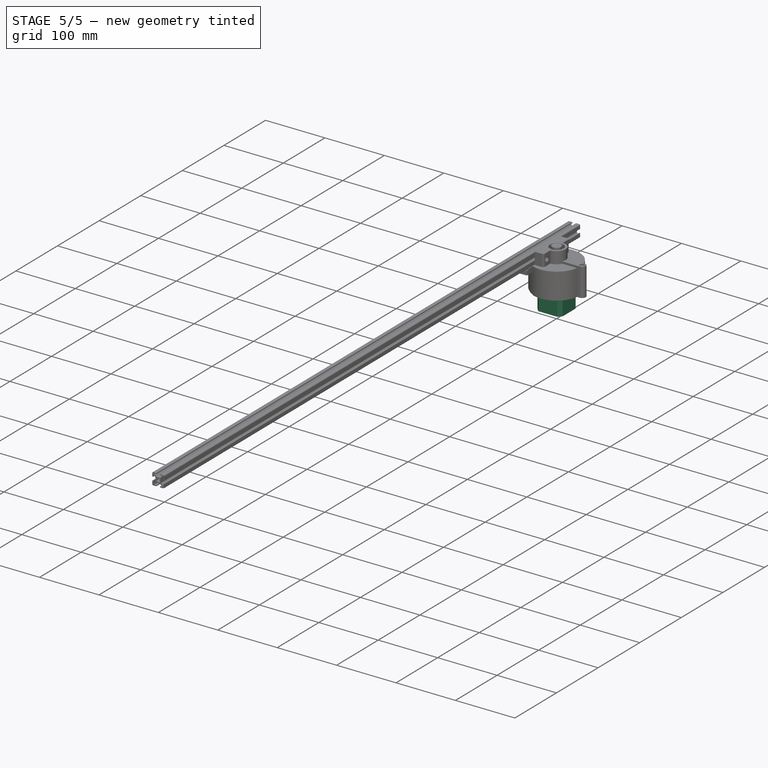
[diagram: stage 5 of 5 — iso view after this stage's code; geometry added in this stage tinted green]
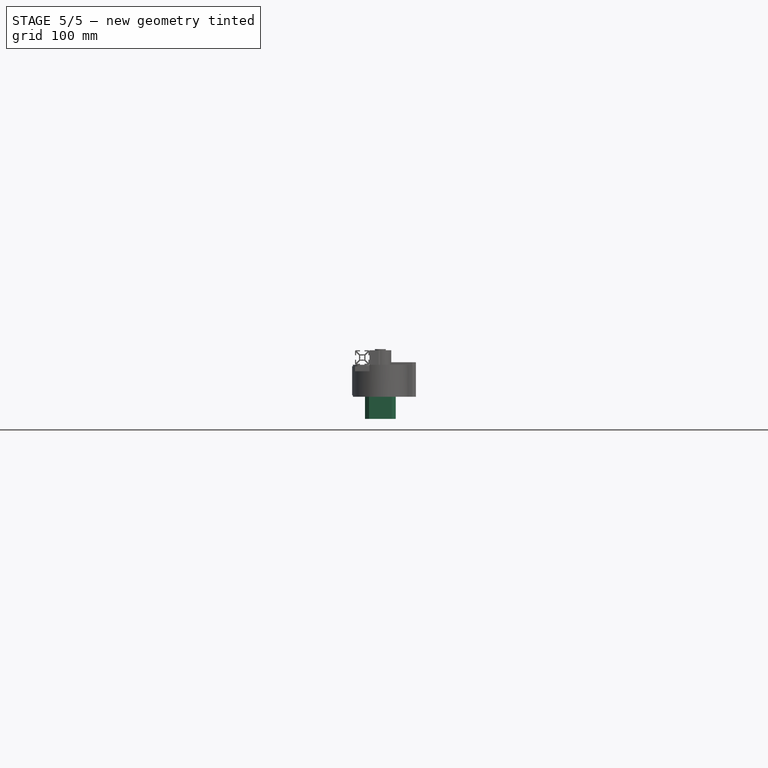
[diagram: stage 5 of 5 — front view after this stage's code; geometry added in this stage tinted green]
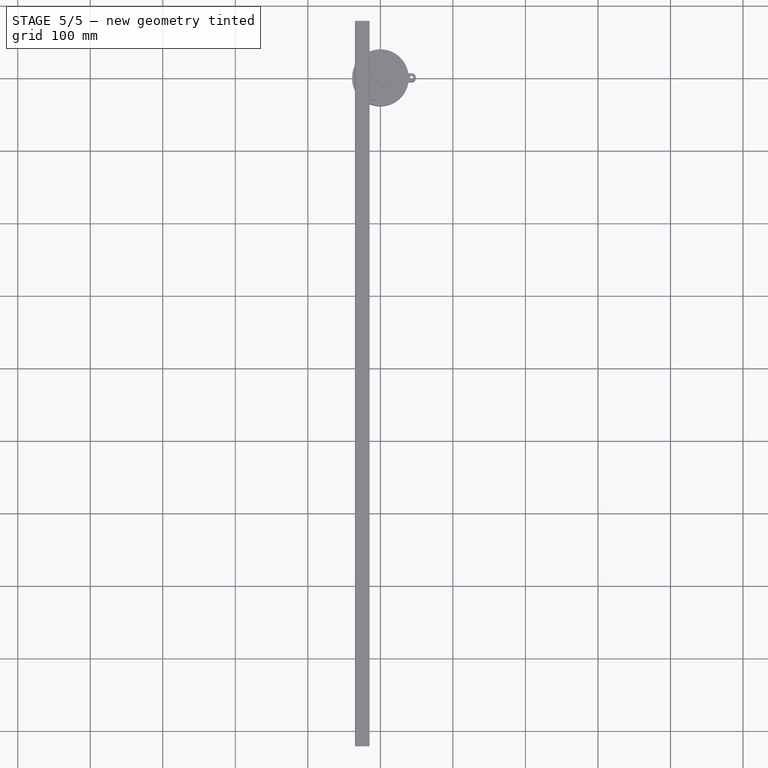
[diagram: stage 5 of 5 — top view after this stage's code; geometry added in this stage tinted green]
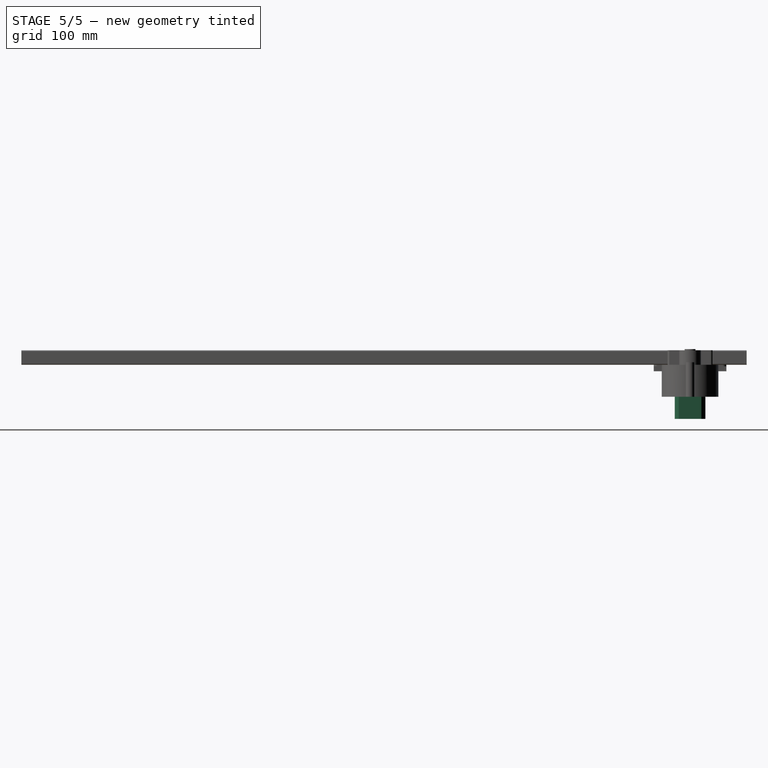
[diagram: stage 5 of 5 — right view after this stage's code; geometry added in this stage tinted green]
FEATURE [Part::Box] Box  label="Cube"
  AttacherType = Attacher::AttachEngine3D
  Height = 37.5
  Length = 42.3
  Placement = pos=(-21.15,-21.15,0) rot=(0,0,1;0rad)
  Width = 42.3
  expr: Height = <<NEMA17Parameters>>.motorlength
FEATURE [Part::Box] Box001  label="Cube001"
  AttacherType = Attacher::AttachEngine3D
  Height = 37.5
  Length = 100
  Placement = pos=(26,-50,0) rot=(0,0,1;0rad)
  Width = 100
  expr: Height = <<NEMA17Parameters>>.motorlength
FEATURE [Part::Box] Box002  label="Cube002"
  AttacherType = Attacher::AttachEngine3D
  Height = 37.5
  Length = 100
  Placement = pos=(26,-50,0) rot=(0,0,1;0rad)
  Width = 100
  expr: Height = <<NEMA17Parameters>>.motorlength
FEATURE [Part::Box] Box003  label="Cube003"
  AttacherType = Attacher::AttachEngine3D
  Height = 37.5
  Length = 100
  Placement = pos=(26,-50,0) rot=(0,0,1;0rad)
  Width = 100
  expr: Height = <<NEMA17Parameters>>.motorlength
FEATURE [Part::Box] Box004  label="Cube004"
  AttacherType = Attacher::AttachEngine3D
  Height = 37.5
  Length = 100
  Placement = pos=(26,-50,0) rot=(0,0,1;0rad)
  Width = 100
  expr: Height = <<NEMA17Parameters>>.motorlength
FEATURE [Part::Compound] Compound001
  Links = -> [Box001]
  Placement = pos=(0,0,0) rot=(0,0,1;0.785398rad)
FEATURE [Part::Compound] Compound002
  Links = -> [Box002]
  Placement = pos=(0,0,0) rot=(0,0,1;2.35619rad)
FEATURE [Part::Compound] Compound003
  Links = -> [Box003]
  Placement = pos=(0,0,0) rot=(0,0,1;3.92699rad)
FEATURE [Part::Compound] Compound004
  Links = -> [Box004]
  Placement = pos=(0,0,0) rot=(0,0,1;5.49779rad)
FEATURE [Part::Compound] Compound005
  Links = -> [Compound001,Compound002,Compound003,Compound004]
FEATURE [Part::Cylinder] Cylinder
  Angle = 360
  AttacherType = Attacher::AttachEngine3D
  FirstAngle = 0
  Height = 2
  Placement = pos=(0,0,-2) rot=(0,0,1;0rad)
  Radius = 11
  SecondAngle = 0
FEATURE [Part::Cylinder] Cylinder001
  Angle = 360
  AttacherType = Attacher::AttachEngine3D
  FirstAngle = 0
  Height = 24
  Placement = pos=(0,0,-24) rot=(0,0,1;0rad)
  Radius = 2.5
  SecondAngle = 0
FEATURE [Part::Cylinder] Cylinder002
  Angle = 360
  AttacherType = Attacher::AttachEngine3D
  FirstAngle = 0
  Height = 37.5
  Placement = pos=(15.5,15.5,0) rot=(0,0,1;0rad)
  Radius = 1.25
  SecondAngle = 0
  expr: Height = <<NEMA17Parameters>>.motorlength
FEATURE [Part::Cylinder] Cylinder003
  Angle = 360
  AttacherType = Attacher::AttachEngine3D
  FirstAngle = 0
  Height = 37.5
  Placement = pos=(-15.5,15.5,0) rot=(0,0,1;0rad)
  Radius = 1.25
  SecondAngle = 0
  expr: Height = <<NEMA17Parameters>>.motorlength
FEATURE [Part::Cylinder] Cylinder004
  Angle = 360
  AttacherType = Attacher::AttachEngine3D
  FirstAngle = 0
  Height = 37.5
  Placement = pos=(15.5,-15.5,0) rot=(0,0,1;0rad)
  Radius = 1.25
  SecondAngle = 0
  expr: Height = <<NEMA17Parameters>>.motorlength
FEATURE [Part::Cylinder] Cylinder005
  Angle = 360
  AttacherType = Attacher::AttachEngine3D
  FirstAngle = 0
  Height = 37.5
  Placement = pos=(-15.5,-15.5,0) rot=(0,0,1;0rad)
  Radius = 1.25
  SecondAngle = 0
  expr: Height = <<NEMA17Parameters>>.motorlength
FEATURE [Part::Compound] Compound
  Links = -> [Cylinder005,Cylinder002,Cylinder003,Cylinder004]
FEATURE [Part::MultiFuse] Fusion
  Shapes = -> [Cylinder,Box]
FEATURE [Part::MultiFuse] Fusion001
  Shapes = -> [Cylinder001,Fusion]
FEATURE [Part::Cut] Cut
  Base = -> Fusion001
  Tool = -> Compound
FEATURE [Part::Cut] Cut001  label="NEMA17Stepper"
  Base = -> Cut
  Placement = pos=(0,0,0) rot=(1,0,0;3.14159rad)
  Tool = -> Compound005
FEATURE [Part::Cylinder] Cylinder008
  Angle = 360
  AttacherType = Attacher::AttachEngine3D
  FirstAngle = 0
  Height = 40
  Radius = 2.25
  SecondAngle = 0
FEATURE [Part::Cylinder] Cylinder009
  Angle = 360
  AttacherType = Attacher::AttachEngine3D
  FirstAngle = 0
  Height = 4
  Placement = pos=(0,0,5) rot=(0,0,1;0rad)
  Radius = 3.75
  SecondAngle = 0
FEATURE [Part::MultiFuse] Fusion002
  Placement = pos=(19.5,0,0) rot=(0,0,1;0rad)
  Shapes = -> [Cylinder009,Cylinder008]
  expr: .Placement.Base.x = <<GearConfiguration>>.planet_offset
FEATURE [Part::FeaturePython] InvoluteGear001  # WARN: FeaturePython — macro-defined, semantics opaque (R4)
  AttacherType = Attacher::AttachEngine3D
  Placement = pos=(19.5,0,5) rot=(0,0,1;0rad)
  angular_backlash = 1.32221
  backlash = 0.3
  beta = 30
  clearance = 0.7
  da = 28
  df = 22.6
  double_helix = false
  dw = 26
  head = 0
  head_fillet = 0.3
  height = 13
  module = 1
  numpoints = 20
  pressure_angle = 20
  properties_from_tool = false
  reversed_backlash = false
  root_fillet = 0
  shift = 0
  simple = false
  teeth = 26
  transverse_pitch = 3.14159
  traverse_module = 1
  undercut = false
  version = 1.2.0
  expr: .Placement.Base.x = <<GearConfiguration>>.planet_offset
  expr: angular_backlash = backlash / dw * 360 ° / pi
  expr: backlash = <<GearConfiguration>>.backlash
  expr: clearance = <<GearConfiguration>>.gear_clearance
  expr: height = 13 mm
  expr: module = <<GearConfiguration>>.gear_module
  expr: teeth = <<GearConfiguration>>.zp
FEATURE [Part::Cut] Cut004  label="PlanetGear"
  Base = -> InvoluteGear001
  Tool = -> Fusion002
FEATURE [Part::FeaturePython] Array  label="ArrayPlanetGears"  # Draft array (typed FeaturePython)
  AlwaysSyncPlacement = false
  Angle = 360
  ArrayType = 1
  Axis = (0,0,1)
  Base = -> Cut004
  Center = (0,0,0)
  Count = 3
  ExpandArray = false
  Fuse = false
  IntervalAxis = (0,0,0)
  IntervalX = (50,0,0)
  IntervalY = (0,50,0)
  IntervalZ = (0,0,50)
  NumberCircles = 3
  NumberPolar = 3
  NumberX = 2
  NumberY = 2
  NumberZ = 1
  PlacementList = 3 placements: [(0,0,0),(0,0,0),(0,0,0)]
  RadialDistance = 50
  ScaleList = (3) [(1,1,1),(1,1,1),(1,1,1)]
  Symmetry = 1
  TangentialDistance = 25
  expr: NumberPolar = <<GearConfiguration>>.num_planets
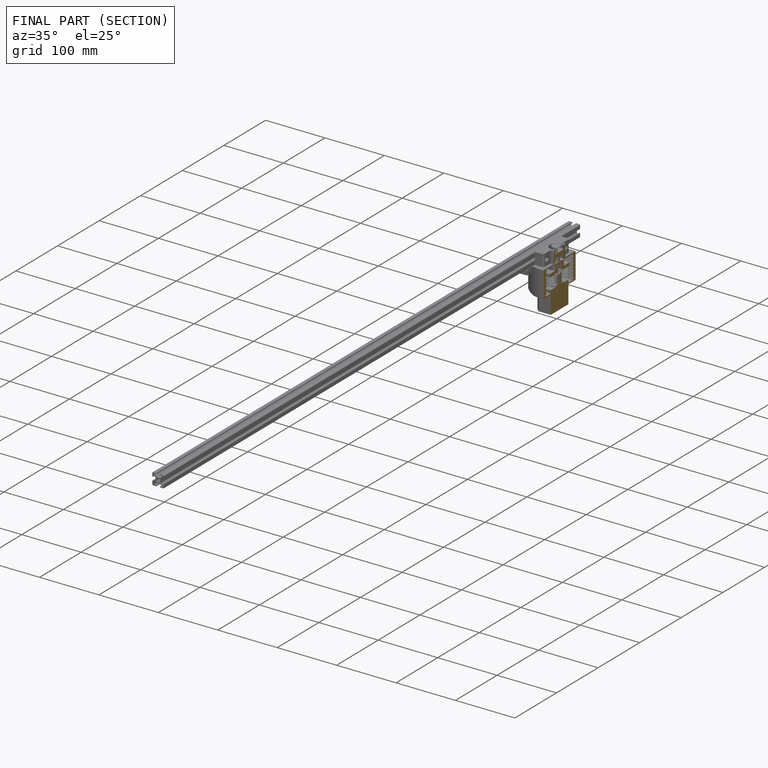
[diagram: finished part — half-section view (interior)]
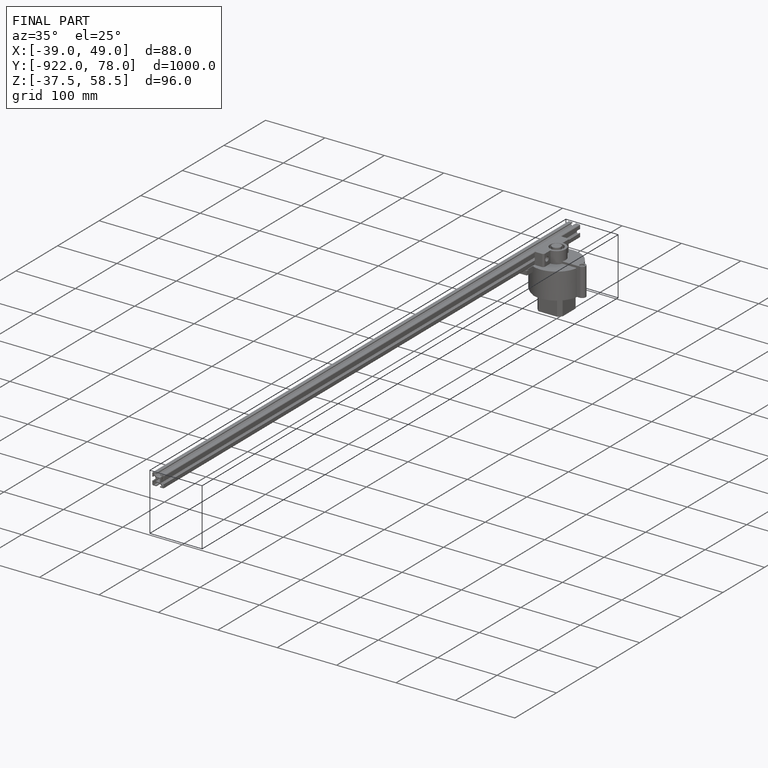
[diagram: finished part — iso view with bounding-box wireframe]
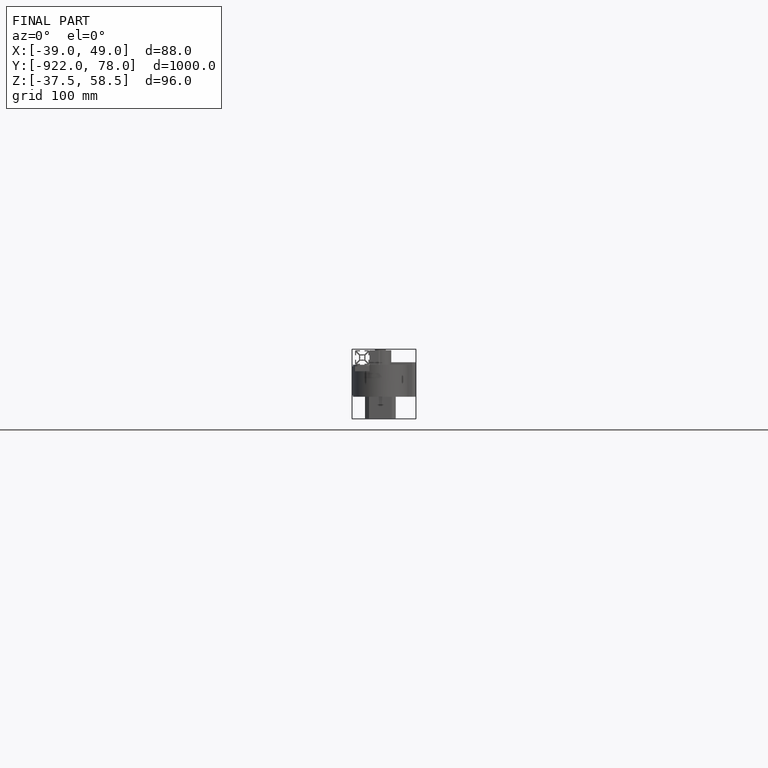
[diagram: finished part — front view with bounding-box wireframe]
